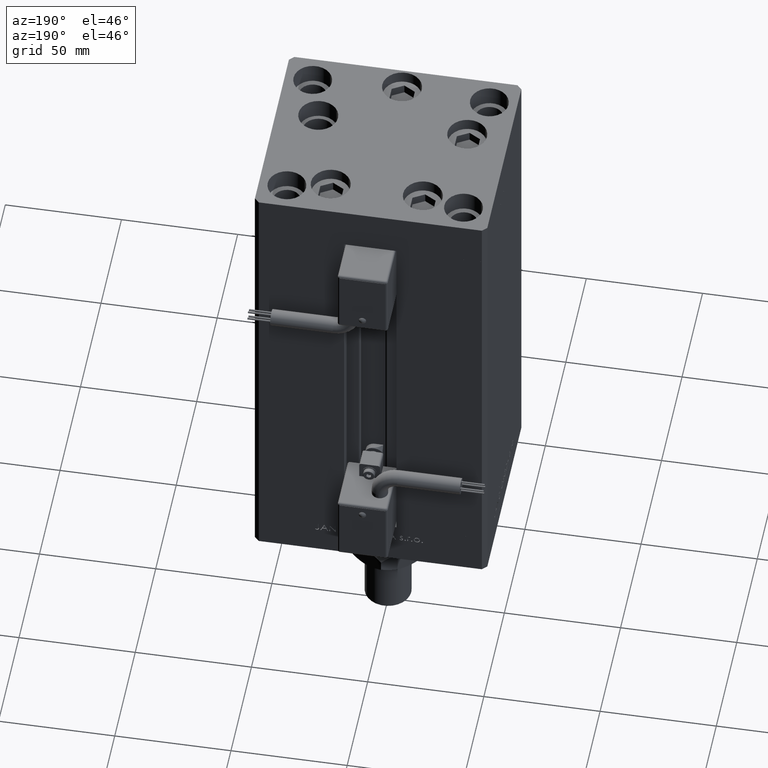
[diagram: clean part render]
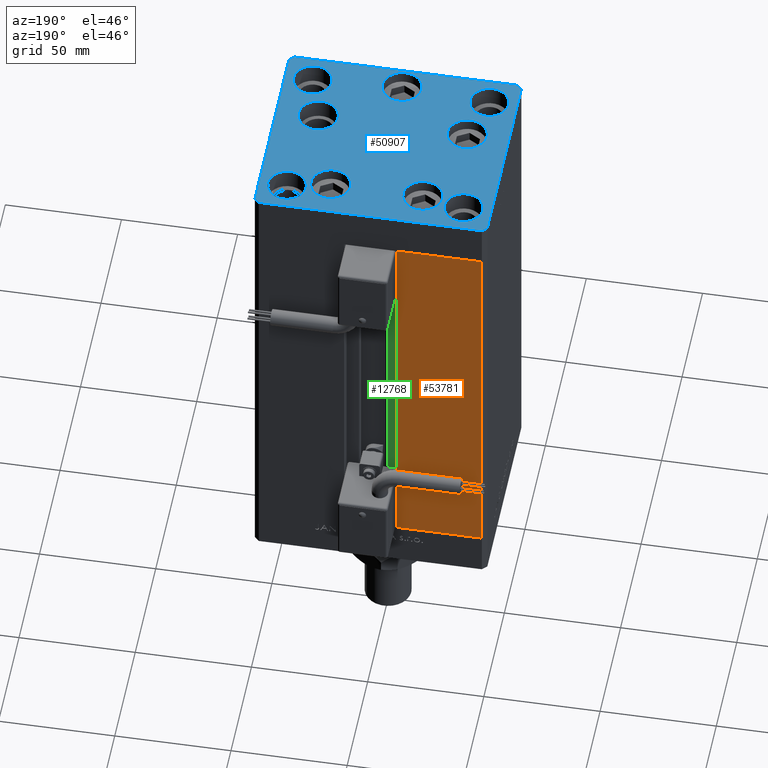
[diagram: same view with three faces highlighted in distinct colors, each labeled with its STEP entity id]
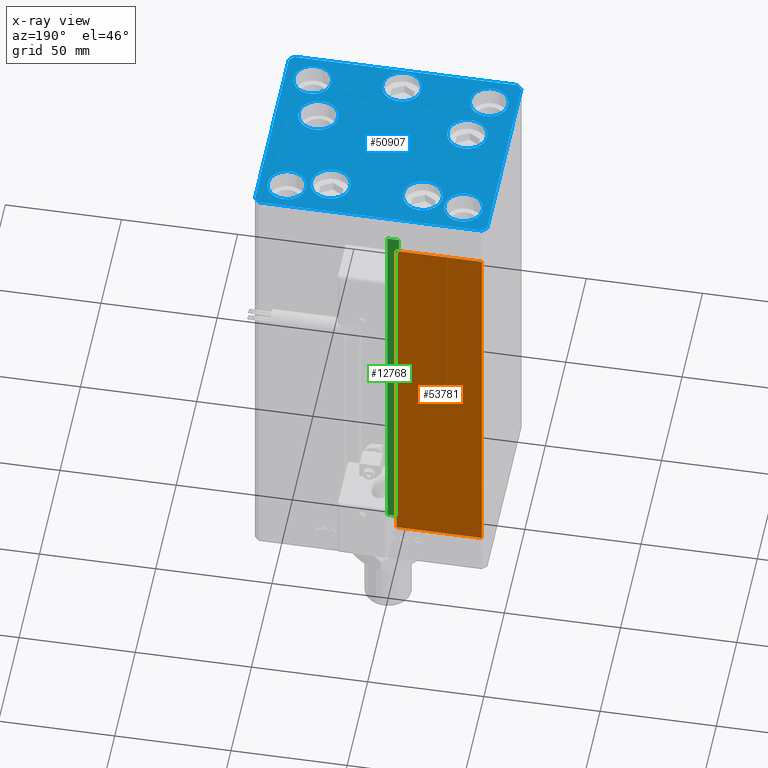
[diagram: x-ray of the same camera — body ghosted, the three highlighted faces saturated]
A machine part, auxiliary view with three faces highlighted in distinct colors.
The next image is the same camera in x-ray (body ghosted, the three faces saturated) — at least one of them is partly hidden behind the body in this view.
Their STEP definitions:

[orange] entity #53781 — the highlighted planar face has unit normal (0, -1, 0).
#399 = CARTESIAN_POINT ( 'NONE',  ( -11.24999999999999822, 43.50000000000000000, 168.5000000000000000 ) ) ;
#669 = FACE_OUTER_BOUND ( 'NONE', #31235, .T. ) ;
#2579 = ORIENTED_EDGE ( 'NONE', *, *, #37189, .F. ) ;
#4181 = CARTESIAN_POINT ( 'NONE',  ( -11.24999999999999822, 43.50000000000000000, 0.000000000000000000 ) ) ;
#4208 = PLANE ( 'NONE',  #30331 ) ;
#5945 = VECTOR ( 'NONE', #7749, 1000.000000000000000 ) ;
#7749 = DIRECTION ( 'NONE',  ( 1.000000000000000000, 0.000000000000000000, 0.000000000000000000 ) ) ;
#9269 = LINE ( 'NONE', #25883, #5945 ) ;
#10710 = ORIENTED_EDGE ( 'NONE', *, *, #52772, .T. ) ;
#11886 = LINE ( 'NONE', #48895, #30719 ) ;
#12135 = LINE ( 'NONE', #53222, #16653 ) ;
#15773 = VERTEX_POINT ( 'NONE', #28951 ) ;
#16092 = ORIENTED_EDGE ( 'NONE', *, *, #33111, .F. ) ;
#16468 = DIRECTION ( 'NONE',  ( 0.000000000000000000, -0.000000000000000000, -1.000000000000000000 ) ) ;
#16653 = VECTOR ( 'NONE', #41530, 1000.000000000000000 ) ;
#16895 = VERTEX_POINT ( 'NONE', #34278 ) ;
#19193 = CARTESIAN_POINT ( 'NONE',  ( -11.24999999999999822, 43.50000000000000000, 168.5000000000000000 ) ) ;
#20692 = VECTOR ( 'NONE', #43896, 1000.000000000000000 ) ;
#21263 = ORIENTED_EDGE ( 'NONE', *, *, #51669, .T. ) ;
#25883 = CARTESIAN_POINT ( 'NONE',  ( -11.24999999999999822, 43.50000000000000000, 168.5000000000000000 ) ) ;
#28951 = CARTESIAN_POINT ( 'NONE',  ( -48.00000000000000711, 43.50000000000000000, 0.000000000000000000 ) ) ;
#30331 = AXIS2_PLACEMENT_3D ( 'NONE', #399, #45301, #16468 ) ;
#30719 = VECTOR ( 'NONE', #40202, 1000.000000000000000 ) ;
#30871 = CARTESIAN_POINT ( 'NONE',  ( -11.24999999999999822, 43.50000000000000000, 0.000000000000000000 ) ) ;
#31235 = EDGE_LOOP ( 'NONE', ( #10710, #2579, #21263, #16092 ) ) ;
#32450 = VERTEX_POINT ( 'NONE', #4181 ) ;
#33111 = EDGE_CURVE ( 'NONE', #16895, #15773, #12135, .T. ) ;
#34278 = CARTESIAN_POINT ( 'NONE',  ( -48.00000000000000711, 43.50000000000000000, 168.5000000000000000 ) ) ;
#35188 = VERTEX_POINT ( 'NONE', #19193 ) ;
#37189 = EDGE_CURVE ( 'NONE', #32450, #35188, #11886, .T. ) ;
#40202 = DIRECTION ( 'NONE',  ( -0.000000000000000000, -0.000000000000000000, 1.000000000000000000 ) ) ;
#41530 = DIRECTION ( 'NONE',  ( -0.000000000000000000, -0.000000000000000000, -1.000000000000000000 ) ) ;
#43896 = DIRECTION ( 'NONE',  ( -1.000000000000000000, 0.000000000000000000, 0.000000000000000000 ) ) ;
#45301 = DIRECTION ( 'NONE',  ( 0.000000000000000000, -1.000000000000000000, 0.000000000000000000 ) ) ;
#48895 = CARTESIAN_POINT ( 'NONE',  ( -11.24999999999999822, 43.50000000000000000, 0.000000000000000000 ) ) ;
#51669 = EDGE_CURVE ( 'NONE', #32450, #15773, #52057, .T. ) ;
#52057 = LINE ( 'NONE', #30871, #20692 ) ;
#52772 = EDGE_CURVE ( 'NONE', #16895, #35188, #9269, .T. ) ;
#53222 = CARTESIAN_POINT ( 'NONE',  ( -48.00000000000000711, 43.50000000000000000, 168.5000000000000000 ) ) ;
#53781 = ADVANCED_FACE ( 'NONE', ( #669 ), #4208, .F. ) ;

[blue] entity #50907 — the highlighted planar face has unit normal (0, 0, 1).
#64 = CARTESIAN_POINT ( 'NONE',  ( 38.00000000000000000, 31.49999999999999289, 0.000000000000000000 ) ) ;
#111 = AXIS2_PLACEMENT_3D ( 'NONE', #31378, #36262, #39795 ) ;
#157 = DIRECTION ( 'NONE',  ( 0.000000000000000000, -0.000000000000000000, -1.000000000000000000 ) ) ;
#397 = FACE_BOUND ( 'NONE', #886, .T. ) ;
#616 = DIRECTION ( 'NONE',  ( 1.000000000000000000, 0.000000000000000000, 0.000000000000000000 ) ) ;
#866 = DIRECTION ( 'NONE',  ( 1.000000000000000000, 0.000000000000000000, 0.000000000000000000 ) ) ;
#886 = EDGE_LOOP ( 'NONE', ( #50153, #30832 ) ) ;
#1219 = DIRECTION ( 'NONE',  ( 0.000000000000000000, 0.000000000000000000, 1.000000000000000000 ) ) ;
#1228 = DIRECTION ( 'NONE',  ( 0.000000000000000000, -0.000000000000000000, -1.000000000000000000 ) ) ;
#1532 = VECTOR ( 'NONE', #48036, 1000.000000000000000 ) ;
#1662 = CARTESIAN_POINT ( 'NONE',  ( -32.05550741379015278, -11.33333333333333925, 0.000000000000000000 ) ) ;
#1759 = CARTESIAN_POINT ( 'NONE',  ( 4.163799117101000559E-15, -34.00000000000000000, 0.000000000000000000 ) ) ;
#1765 = EDGE_LOOP ( 'NONE', ( #11348, #39257 ) ) ;
#2276 = EDGE_CURVE ( 'NONE', #40452, #29568, #36360, .T. ) ;
#2340 = AXIS2_PLACEMENT_3D ( 'NONE', #1759, #1228, #30896 ) ;
#3248 = CARTESIAN_POINT ( 'NONE',  ( 40.55550741379014568, -11.33333333333332860, 0.000000000000000000 ) ) ;
#3452 = CARTESIAN_POINT ( 'NONE',  ( 32.05550741379015278, -11.33333333333333037, 0.000000000000000000 ) ) ;
#3500 = CIRCLE ( 'NONE', #6087, 8.500000000000000000 ) ;
#3700 = LINE ( 'NONE', #7788, #16177 ) ;
#3799 = DIRECTION ( 'NONE',  ( 1.000000000000000000, 0.000000000000000000, 0.000000000000000000 ) ) ;
#3823 = DIRECTION ( 'NONE',  ( -1.003213576468515193E-15, 1.000000000000000000, 0.000000000000000000 ) ) ;
#3942 = EDGE_CURVE ( 'NONE', #29568, #40452, #16558, .T. ) ;
#4080 = CIRCLE ( 'NONE', #2340, 8.500000000000000000 ) ;
#4314 = EDGE_LOOP ( 'NONE', ( #37838, #47973 ) ) ;
#4386 = CARTESIAN_POINT ( 'NONE',  ( -29.74999999999999289, -31.50000000000000000, 0.000000000000000000 ) ) ;
#4464 = VECTOR ( 'NONE', #3823, 1000.000000000000000 ) ;
#4683 = VERTEX_POINT ( 'NONE', #4386 ) ;
#4985 = CARTESIAN_POINT ( 'NONE',  ( -40.55550741379015278, -11.33333333333333925, 0.000000000000000000 ) ) ;
#5002 = DIRECTION ( 'NONE',  ( -0.000000000000000000, 0.000000000000000000, 1.000000000000000000 ) ) ;
#5220 = DIRECTION ( 'NONE',  ( 0.000000000000000000, 0.000000000000000000, 1.000000000000000000 ) ) ;
#5340 = DIRECTION ( 'NONE',  ( 0.000000000000000000, 0.000000000000000000, 1.000000000000000000 ) ) ;
#5912 = AXIS2_PLACEMENT_3D ( 'NONE', #20138, #31379, #10659 ) ;
#5943 = AXIS2_PLACEMENT_3D ( 'NONE', #38507, #1219, #46919 ) ;
#6087 = AXIS2_PLACEMENT_3D ( 'NONE', #52144, #14875, #31497 ) ;
#6932 = VERTEX_POINT ( 'NONE', #24172 ) ;
#7051 = CARTESIAN_POINT ( 'NONE',  ( -48.00000000000000711, 43.49999999999996447, 0.000000000000000000 ) ) ;
#7767 = EDGE_CURVE ( 'NONE', #48570, #4683, #48009, .T. ) ;
#7788 = CARTESIAN_POINT ( 'NONE',  ( -50.00000000000000000, -41.50000000000000000, 0.000000000000000000 ) ) ;
#7813 = DIRECTION ( 'NONE',  ( -0.7071067811865463515, -0.7071067811865487940, 0.000000000000000000 ) ) ;
#7816 = CARTESIAN_POINT ( 'NONE',  ( 47.99999999999999289, -43.50000000000001421, 0.000000000000000000 ) ) ;
#8150 = VERTEX_POINT ( 'NONE', #28005 ) ;
#8318 = VERTEX_POINT ( 'NONE', #38842 ) ;
#8325 = EDGE_CURVE ( 'NONE', #8150, #44002, #23041, .T. ) ;
#8499 = EDGE_CURVE ( 'NONE', #9262, #28586, #48918, .T. ) ;
#8550 = FACE_BOUND ( 'NONE', #42257, .T. ) ;
#8718 = ORIENTED_EDGE ( 'NONE', *, *, #49652, .T. ) ;
#8795 = ORIENTED_EDGE ( 'NONE', *, *, #40325, .T. ) ;
#9094 = AXIS2_PLACEMENT_3D ( 'NONE', #15592, #18859, #36279 ) ;
#9259 = DIRECTION ( 'NONE',  ( 0.000000000000000000, -0.000000000000000000, -1.000000000000000000 ) ) ;
#9262 = VERTEX_POINT ( 'NONE', #18969 ) ;
#9671 = EDGE_LOOP ( 'NONE', ( #50072, #27113 ) ) ;
#9795 = AXIS2_PLACEMENT_3D ( 'NONE', #22331, #9259, #25869 ) ;
#10212 = CIRCLE ( 'NONE', #17180, 8.250000000000000000 ) ;
#10391 = ORIENTED_EDGE ( 'NONE', *, *, #18163, .T. ) ;
#10400 = ORIENTED_EDGE ( 'NONE', *, *, #50689, .F. ) ;
#10659 = DIRECTION ( 'NONE',  ( 1.000000000000000000, 0.000000000000000000, 0.000000000000000000 ) ) ;
#10813 = VERTEX_POINT ( 'NONE', #4985 ) ;
#10887 = DIRECTION ( 'NONE',  ( 1.000000000000000000, 0.000000000000000000, 0.000000000000000000 ) ) ;
#10961 = CARTESIAN_POINT ( 'NONE',  ( -23.55550741379015278, -11.33333333333333748, 0.000000000000000000 ) ) ;
#11033 = CARTESIAN_POINT ( 'NONE',  ( -50.00000000000000711, 41.49999999999995026, 0.000000000000000000 ) ) ;
#11348 = ORIENTED_EDGE ( 'NONE', *, *, #2276, .F. ) ;
#11587 = EDGE_LOOP ( 'NONE', ( #39868, #8795 ) ) ;
#11737 = DIRECTION ( 'NONE',  ( -1.000000000000000000, -3.614007241618350743E-16, 0.000000000000000000 ) ) ;
#11869 = ORIENTED_EDGE ( 'NONE', *, *, #7767, .F. ) ;
#12254 = EDGE_CURVE ( 'NONE', #27132, #44807, #30879, .T. ) ;
#12363 = FACE_BOUND ( 'NONE', #4314, .T. ) ;
#12796 = CARTESIAN_POINT ( 'NONE',  ( -50.00000000000000711, 41.49999999999995026, 0.000000000000000000 ) ) ;
#13097 = DIRECTION ( 'NONE',  ( 0.000000000000000000, 0.000000000000000000, 1.000000000000000000 ) ) ;
#13324 = ORIENTED_EDGE ( 'NONE', *, *, #8325, .T. ) ;
#13456 = CARTESIAN_POINT ( 'NONE',  ( 4.163799117101000559E-15, -34.00000000000000000, 0.000000000000000000 ) ) ;
#13662 = ORIENTED_EDGE ( 'NONE', *, *, #40126, .F. ) ;
#14033 = DIRECTION ( 'NONE',  ( 1.000000000000000000, 0.000000000000000000, 0.000000000000000000 ) ) ;
#14109 = AXIS2_PLACEMENT_3D ( 'NONE', #39991, #26666, #52493 ) ;
#14299 = CIRCLE ( 'NONE', #9094, 8.499999999999992895 ) ;
#14875 = DIRECTION ( 'NONE',  ( 0.000000000000000000, -0.000000000000000000, -1.000000000000000000 ) ) ;
#14974 = CARTESIAN_POINT ( 'NONE',  ( 38.00000000000000000, -31.49999999999999289, 0.000000000000000000 ) ) ;
#15044 = AXIS2_PLACEMENT_3D ( 'NONE', #13456, #157, #41524 ) ;
#15273 = CARTESIAN_POINT ( 'NONE',  ( 50.00000000000000000, -41.49999999999999289, 0.000000000000000000 ) ) ;
#15387 = EDGE_CURVE ( 'NONE', #20159, #8150, #3700, .T. ) ;
#15592 = CARTESIAN_POINT ( 'NONE',  ( 32.05550741379015278, -11.33333333333333037, 0.000000000000000000 ) ) ;
#15717 = LINE ( 'NONE', #32339, #52753 ) ;
#16177 = VECTOR ( 'NONE', #53757, 1000.000000000000114 ) ;
#16558 = CIRCLE ( 'NONE', #25217, 8.250000000000000000 ) ;
#16688 = CIRCLE ( 'NONE', #47086, 8.499999999999992895 ) ;
#16723 = FACE_BOUND ( 'NONE', #9671, .T. ) ;
#16873 = CIRCLE ( 'NONE', #22979, 8.250000000000000000 ) ;
#16930 = EDGE_LOOP ( 'NONE', ( #51363, #13324, #50861, #20083, #43083, #38103, #8718, #10391 ) ) ;
#17180 = AXIS2_PLACEMENT_3D ( 'NONE', #50505, #5340, #14033 ) ;
#17538 = FACE_BOUND ( 'NONE', #1765, .T. ) ;
#17560 = VERTEX_POINT ( 'NONE', #31071 ) ;
#17752 = VERTEX_POINT ( 'NONE', #34286 ) ;
#17796 = PLANE ( 'NONE',  #39787 ) ;
#18114 = VECTOR ( 'NONE', #24427, 1000.000000000000000 ) ;
#18157 = CARTESIAN_POINT ( 'NONE',  ( -47.99999999999999289, -43.50000000000001421, 0.000000000000000000 ) ) ;
#18163 = EDGE_CURVE ( 'NONE', #33784, #20159, #52127, .T. ) ;
#18258 = DIRECTION ( 'NONE',  ( 0.000000000000000000, -0.000000000000000000, -1.000000000000000000 ) ) ;
#18383 = CARTESIAN_POINT ( 'NONE',  ( 38.00000000000000000, -31.49999999999999289, 0.000000000000000000 ) ) ;
#18503 = CIRCLE ( 'NONE', #9795, 8.500000000000000000 ) ;
#18859 = DIRECTION ( 'NONE',  ( 0.000000000000000000, -0.000000000000000000, -1.000000000000000000 ) ) ;
#18969 = CARTESIAN_POINT ( 'NONE',  ( 8.500000000000003553, -34.00000000000000000, 0.000000000000000000 ) ) ;
#19882 = CARTESIAN_POINT ( 'NONE',  ( -19.82068048781373903, 27.62499999999999645, 0.000000000000000000 ) ) ;
#19905 = LINE ( 'NONE', #15273, #4464 ) ;
#20008 = CARTESIAN_POINT ( 'NONE',  ( 50.00000000000000000, -41.49999999999999289, 0.000000000000000000 ) ) ;
#20083 = ORIENTED_EDGE ( 'NONE', *, *, #30232, .T. ) ;
#20138 = CARTESIAN_POINT ( 'NONE',  ( 38.00000000000000000, 31.49999999999999289, 0.000000000000000000 ) ) ;
#20141 = VERTEX_POINT ( 'NONE', #45546 ) ;
#20159 = VERTEX_POINT ( 'NONE', #34138 ) ;
#20486 = CARTESIAN_POINT ( 'NONE',  ( 46.25000000000000000, 31.49999999999999289, 0.000000000000000000 ) ) ;
#20502 = EDGE_CURVE ( 'NONE', #29226, #10813, #22349, .T. ) ;
#20853 = EDGE_CURVE ( 'NONE', #34918, #42187, #42356, .T. ) ;
#21828 = VECTOR ( 'NONE', #11737, 1000.000000000000000 ) ;
#22156 = CARTESIAN_POINT ( 'NONE',  ( 19.82068048781373193, 27.62500000000000000, 0.000000000000000000 ) ) ;
#22169 = AXIS2_PLACEMENT_3D ( 'NONE', #14974, #31602, #10887 ) ;
#22331 = CARTESIAN_POINT ( 'NONE',  ( -19.82068048781373903, 27.62499999999999645, 0.000000000000000000 ) ) ;
#22349 = CIRCLE ( 'NONE', #37119, 8.500000000000000000 ) ;
#22979 = AXIS2_PLACEMENT_3D ( 'NONE', #18383, #51562, #39884 ) ;
#23041 = LINE ( 'NONE', #18157, #32409 ) ;
#23654 = EDGE_CURVE ( 'NONE', #8318, #32849, #29420, .T. ) ;
#23953 = CARTESIAN_POINT ( 'NONE',  ( 47.99999999999999289, -43.50000000000001421, 0.000000000000000000 ) ) ;
#24172 = CARTESIAN_POINT ( 'NONE',  ( -11.32068048781373726, 27.62499999999999645, 0.000000000000000000 ) ) ;
#24427 = DIRECTION ( 'NONE',  ( 0.7071067811865463515, 0.7071067811865487940, 0.000000000000000000 ) ) ;
#25095 = CARTESIAN_POINT ( 'NONE',  ( -8.499999999999996447, -34.00000000000000000, 0.000000000000000000 ) ) ;
#25164 = FACE_BOUND ( 'NONE', #48202, .T. ) ;
#25217 = AXIS2_PLACEMENT_3D ( 'NONE', #64, #13097, #866 ) ;
#25869 = DIRECTION ( 'NONE',  ( 1.000000000000000000, 0.000000000000000000, 0.000000000000000000 ) ) ;
#26326 = AXIS2_PLACEMENT_3D ( 'NONE', #26448, #5220, #616 ) ;
#26448 = CARTESIAN_POINT ( 'NONE',  ( -37.99999999999999289, -31.50000000000000000, 0.000000000000000000 ) ) ;
#26666 = DIRECTION ( 'NONE',  ( 0.000000000000000000, 0.000000000000000000, 1.000000000000000000 ) ) ;
#26860 = DIRECTION ( 'NONE',  ( 1.000000000000000000, 0.000000000000000000, 0.000000000000000000 ) ) ;
#27113 = ORIENTED_EDGE ( 'NONE', *, *, #20853, .T. ) ;
#27132 = VERTEX_POINT ( 'NONE', #50535 ) ;
#27258 = EDGE_CURVE ( 'NONE', #10813, #29226, #3500, .T. ) ;
#27478 = VERTEX_POINT ( 'NONE', #44392 ) ;
#28005 = CARTESIAN_POINT ( 'NONE',  ( -47.99999999999999289, -43.50000000000001421, 0.000000000000000000 ) ) ;
#28044 = DIRECTION ( 'NONE',  ( 0.000000000000000000, -0.000000000000000000, -1.000000000000000000 ) ) ;
#28238 = DIRECTION ( 'NONE',  ( 1.000000000000000000, 0.000000000000000000, 0.000000000000000000 ) ) ;
#28586 = VERTEX_POINT ( 'NONE', #25095 ) ;
#29026 = LINE ( 'NONE', #37725, #43786 ) ;
#29226 = VERTEX_POINT ( 'NONE', #10961 ) ;
#29293 = DIRECTION ( 'NONE',  ( -0.7071067811865474617, 0.7071067811865474617, 0.000000000000000000 ) ) ;
#29420 = CIRCLE ( 'NONE', #5943, 8.250000000000000000 ) ;
#29568 = VERTEX_POINT ( 'NONE', #45696 ) ;
#30232 = EDGE_CURVE ( 'NONE', #37572, #17752, #19905, .T. ) ;
#30832 = ORIENTED_EDGE ( 'NONE', *, *, #35926, .F. ) ;
#30879 = CIRCLE ( 'NONE', #22169, 8.250000000000000000 ) ;
#30896 = DIRECTION ( 'NONE',  ( 1.000000000000000000, 0.000000000000000000, 0.000000000000000000 ) ) ;
#31037 = ORIENTED_EDGE ( 'NONE', *, *, #27258, .T. ) ;
#31071 = CARTESIAN_POINT ( 'NONE',  ( 47.99999999999990763, 43.50000000000000000, 0.000000000000000000 ) ) ;
#31378 = CARTESIAN_POINT ( 'NONE',  ( 19.82068048781373193, 27.62500000000000000, 0.000000000000000000 ) ) ;
#31379 = DIRECTION ( 'NONE',  ( 0.000000000000000000, 0.000000000000000000, 1.000000000000000000 ) ) ;
#31497 = DIRECTION ( 'NONE',  ( 1.000000000000000000, 0.000000000000000000, 0.000000000000000000 ) ) ;
#31602 = DIRECTION ( 'NONE',  ( 0.000000000000000000, 0.000000000000000000, 1.000000000000000000 ) ) ;
#32339 = CARTESIAN_POINT ( 'NONE',  ( -48.00000000000000711, 43.49999999999996447, 0.000000000000000000 ) ) ;
#32409 = VECTOR ( 'NONE', #26860, 1000.000000000000000 ) ;
#32676 = EDGE_CURVE ( 'NONE', #42187, #34918, #45276, .T. ) ;
#32803 = EDGE_CURVE ( 'NONE', #17560, #49364, #36798, .T. ) ;
#32849 = VERTEX_POINT ( 'NONE', #50614 ) ;
#33078 = VERTEX_POINT ( 'NONE', #3248 ) ;
#33254 = CIRCLE ( 'NONE', #14109, 8.250000000000000000 ) ;
#33341 = FACE_BOUND ( 'NONE', #51284, .T. ) ;
#33784 = VERTEX_POINT ( 'NONE', #12796 ) ;
#34138 = CARTESIAN_POINT ( 'NONE',  ( -50.00000000000000000, -41.50000000000000000, 0.000000000000000000 ) ) ;
#34148 = DIRECTION ( 'NONE',  ( 1.000000000000000000, 0.000000000000000000, 0.000000000000000000 ) ) ;
#34286 = CARTESIAN_POINT ( 'NONE',  ( 49.99999999999992184, 41.49999999999998579, 0.000000000000000000 ) ) ;
#34687 = DIRECTION ( 'NONE',  ( 1.000000000000000000, 0.000000000000000000, 0.000000000000000000 ) ) ;
#34918 = VERTEX_POINT ( 'NONE', #35863 ) ;
#35034 = EDGE_CURVE ( 'NONE', #20141, #33078, #16688, .T. ) ;
#35183 = ORIENTED_EDGE ( 'NONE', *, *, #8499, .T. ) ;
#35863 = CARTESIAN_POINT ( 'NONE',  ( 28.32068048781373193, 27.62500000000000000, 0.000000000000000000 ) ) ;
#35926 = EDGE_CURVE ( 'NONE', #32849, #8318, #33254, .T. ) ;
#36183 = ORIENTED_EDGE ( 'NONE', *, *, #12254, .F. ) ;
#36262 = DIRECTION ( 'NONE',  ( 0.000000000000000000, -0.000000000000000000, -1.000000000000000000 ) ) ;
#36279 = DIRECTION ( 'NONE',  ( 1.000000000000000000, 0.000000000000000000, 0.000000000000000000 ) ) ;
#36360 = CIRCLE ( 'NONE', #5912, 8.250000000000000000 ) ;
#36579 = ORIENTED_EDGE ( 'NONE', *, *, #20502, .T. ) ;
#36603 = EDGE_CURVE ( 'NONE', #27478, #6932, #18503, .T. ) ;
#36798 = LINE ( 'NONE', #53107, #21828 ) ;
#37119 = AXIS2_PLACEMENT_3D ( 'NONE', #1662, #18258, #47092 ) ;
#37572 = VERTEX_POINT ( 'NONE', #20008 ) ;
#37725 = CARTESIAN_POINT ( 'NONE',  ( 49.99999999999992184, 41.49999999999998579, 0.000000000000000000 ) ) ;
#37813 = EDGE_LOOP ( 'NONE', ( #31037, #36579 ) ) ;
#37838 = ORIENTED_EDGE ( 'NONE', *, *, #36603, .T. ) ;
#37949 = DIRECTION ( 'NONE',  ( 0.000000000000000000, -0.000000000000000000, -1.000000000000000000 ) ) ;
#38103 = ORIENTED_EDGE ( 'NONE', *, *, #32803, .T. ) ;
#38507 = CARTESIAN_POINT ( 'NONE',  ( -38.00000000000000000, 31.50000000000000000, 0.000000000000000000 ) ) ;
#38842 = CARTESIAN_POINT ( 'NONE',  ( -29.75000000000000000, 31.50000000000000000, 0.000000000000000000 ) ) ;
#39257 = ORIENTED_EDGE ( 'NONE', *, *, #3942, .F. ) ;
#39666 = ORIENTED_EDGE ( 'NONE', *, *, #48820, .T. ) ;
#39787 = AXIS2_PLACEMENT_3D ( 'NONE', #51248, #5002, #34148 ) ;
#39795 = DIRECTION ( 'NONE',  ( 1.000000000000000000, 0.000000000000000000, 0.000000000000000000 ) ) ;
#39868 = ORIENTED_EDGE ( 'NONE', *, *, #35034, .T. ) ;
#39884 = DIRECTION ( 'NONE',  ( 1.000000000000000000, 0.000000000000000000, 0.000000000000000000 ) ) ;
#39991 = CARTESIAN_POINT ( 'NONE',  ( -38.00000000000000000, 31.50000000000000000, 0.000000000000000000 ) ) ;
#40126 = EDGE_CURVE ( 'NONE', #44807, #27132, #16873, .T. ) ;
#40325 = EDGE_CURVE ( 'NONE', #33078, #20141, #14299, .T. ) ;
#40452 = VERTEX_POINT ( 'NONE', #20486 ) ;
#40642 = AXIS2_PLACEMENT_3D ( 'NONE', #22156, #37949, #34687 ) ;
#40752 = LINE ( 'NONE', #7816, #18114 ) ;
#41015 = DIRECTION ( 'NONE',  ( 0.000000000000000000, -0.000000000000000000, -1.000000000000000000 ) ) ;
#41524 = DIRECTION ( 'NONE',  ( 1.000000000000000000, 0.000000000000000000, 0.000000000000000000 ) ) ;
#42071 = CARTESIAN_POINT ( 'NONE',  ( 11.32068048781373015, 27.62500000000000000, 0.000000000000000000 ) ) ;
#42133 = EDGE_CURVE ( 'NONE', #17752, #17560, #29026, .T. ) ;
#42187 = VERTEX_POINT ( 'NONE', #42071 ) ;
#42257 = EDGE_LOOP ( 'NONE', ( #13662, #36183 ) ) ;
#42356 = CIRCLE ( 'NONE', #40642, 8.500000000000000000 ) ;
#43083 = ORIENTED_EDGE ( 'NONE', *, *, #42133, .T. ) ;
#43786 = VECTOR ( 'NONE', #29293, 1000.000000000000114 ) ;
#44002 = VERTEX_POINT ( 'NONE', #23953 ) ;
#44392 = CARTESIAN_POINT ( 'NONE',  ( -28.32068048781373903, 27.62499999999999645, 0.000000000000000000 ) ) ;
#44807 = VERTEX_POINT ( 'NONE', #48116 ) ;
#45276 = CIRCLE ( 'NONE', #111, 8.500000000000000000 ) ;
#45546 = CARTESIAN_POINT ( 'NONE',  ( 23.55550741379015633, -11.33333333333333037, 0.000000000000000000 ) ) ;
#45696 = CARTESIAN_POINT ( 'NONE',  ( 29.74999999999999645, 31.49999999999999289, 0.000000000000000000 ) ) ;
#46092 = FACE_OUTER_BOUND ( 'NONE', #16930, .T. ) ;
#46843 = CIRCLE ( 'NONE', #49457, 8.500000000000000000 ) ;
#46919 = DIRECTION ( 'NONE',  ( 1.000000000000000000, 0.000000000000000000, 0.000000000000000000 ) ) ;
#47086 = AXIS2_PLACEMENT_3D ( 'NONE', #3452, #41015, #28238 ) ;
#47092 = DIRECTION ( 'NONE',  ( 1.000000000000000000, 0.000000000000000000, 0.000000000000000000 ) ) ;
#47973 = ORIENTED_EDGE ( 'NONE', *, *, #53043, .T. ) ;
#48009 = CIRCLE ( 'NONE', #26326, 8.250000000000000000 ) ;
#48036 = DIRECTION ( 'NONE',  ( 8.360113137237628665E-17, -1.000000000000000000, 0.000000000000000000 ) ) ;
#48116 = CARTESIAN_POINT ( 'NONE',  ( 46.25000000000000000, -31.49999999999999289, 0.000000000000000000 ) ) ;
#48202 = EDGE_LOOP ( 'NONE', ( #10400, #11869 ) ) ;
#48570 = VERTEX_POINT ( 'NONE', #50866 ) ;
#48820 = EDGE_CURVE ( 'NONE', #28586, #9262, #4080, .T. ) ;
#48918 = CIRCLE ( 'NONE', #15044, 8.500000000000000000 ) ;
#49364 = VERTEX_POINT ( 'NONE', #7051 ) ;
#49457 = AXIS2_PLACEMENT_3D ( 'NONE', #19882, #28044, #3799 ) ;
#49652 = EDGE_CURVE ( 'NONE', #49364, #33784, #15717, .T. ) ;
#49901 = FACE_BOUND ( 'NONE', #37813, .T. ) ;
#50072 = ORIENTED_EDGE ( 'NONE', *, *, #32676, .T. ) ;
#50153 = ORIENTED_EDGE ( 'NONE', *, *, #23654, .F. ) ;
#50505 = CARTESIAN_POINT ( 'NONE',  ( -37.99999999999999289, -31.50000000000000000, 0.000000000000000000 ) ) ;
#50535 = CARTESIAN_POINT ( 'NONE',  ( 29.74999999999999645, -31.49999999999999289, 0.000000000000000000 ) ) ;
#50614 = CARTESIAN_POINT ( 'NONE',  ( -46.25000000000000000, 31.50000000000000000, 0.000000000000000000 ) ) ;
#50689 = EDGE_CURVE ( 'NONE', #4683, #48570, #10212, .T. ) ;
#50861 = ORIENTED_EDGE ( 'NONE', *, *, #52424, .T. ) ;
#50866 = CARTESIAN_POINT ( 'NONE',  ( -46.24999999999999289, -31.50000000000000000, 0.000000000000000000 ) ) ;
#50907 = ADVANCED_FACE ( 'NONE', ( #12363, #16723, #53732, #33341, #49901, #8550, #25164, #397, #17538, #46092 ), #17796, .T. ) ;
#51248 = CARTESIAN_POINT ( 'NONE',  ( 0.000000000000000000, 0.000000000000000000, 0.000000000000000000 ) ) ;
#51284 = EDGE_LOOP ( 'NONE', ( #39666, #35183 ) ) ;
#51363 = ORIENTED_EDGE ( 'NONE', *, *, #15387, .T. ) ;
#51562 = DIRECTION ( 'NONE',  ( 0.000000000000000000, 0.000000000000000000, 1.000000000000000000 ) ) ;
#52127 = LINE ( 'NONE', #11033, #1532 ) ;
#52144 = CARTESIAN_POINT ( 'NONE',  ( -32.05550741379015278, -11.33333333333333925, 0.000000000000000000 ) ) ;
#52424 = EDGE_CURVE ( 'NONE', #44002, #37572, #40752, .T. ) ;
#52493 = DIRECTION ( 'NONE',  ( 1.000000000000000000, 0.000000000000000000, 0.000000000000000000 ) ) ;
#52753 = VECTOR ( 'NONE', #7813, 1000.000000000000000 ) ;
#53043 = EDGE_CURVE ( 'NONE', #6932, #27478, #46843, .T. ) ;
#53107 = CARTESIAN_POINT ( 'NONE',  ( 47.99999999999990763, 43.50000000000000000, 0.000000000000000000 ) ) ;
#53732 = FACE_BOUND ( 'NONE', #11587, .T. ) ;
#53757 = DIRECTION ( 'NONE',  ( 0.7071067811865474617, -0.7071067811865474617, 0.000000000000000000 ) ) ;

[green] entity #12768 — the highlighted planar face has unit normal (0, -1, 0).
#450 = AXIS2_PLACEMENT_3D ( 'NONE', #47492, #30935, #26572 ) ;
#5607 = VECTOR ( 'NONE', #24086, 1000.000000000000000 ) ;
#6678 = FACE_OUTER_BOUND ( 'NONE', #48053, .T. ) ;
#6715 = CARTESIAN_POINT ( 'NONE',  ( 0.000000000000000000, 36.99999999999999289, 168.5000000000000000 ) ) ;
#7580 = CARTESIAN_POINT ( 'NONE',  ( -6.183333333333997928, 36.99999999999999289, 0.000000000000000000 ) ) ;
#9192 = VERTEX_POINT ( 'NONE', #39923 ) ;
#11863 = LINE ( 'NONE', #36916, #45312 ) ;
#12106 = EDGE_CURVE ( 'NONE', #53553, #44139, #40146, .T. ) ;
#12369 = CARTESIAN_POINT ( 'NONE',  ( -6.183333333333997928, 36.99999999999999289, 0.000000000000000000 ) ) ;
#12768 = ADVANCED_FACE ( 'NONE', ( #6678 ), #14304, .F. ) ;
#14304 = PLANE ( 'NONE',  #450 ) ;
#21125 = ORIENTED_EDGE ( 'NONE', *, *, #33151, .F. ) ;
#21282 = ORIENTED_EDGE ( 'NONE', *, *, #32136, .F. ) ;
#21543 = ORIENTED_EDGE ( 'NONE', *, *, #41075, .F. ) ;
#23861 = LINE ( 'NONE', #6715, #27892 ) ;
#23878 = VERTEX_POINT ( 'NONE', #7580 ) ;
#24086 = DIRECTION ( 'NONE',  ( -0.000000000000000000, -0.000000000000000000, 1.000000000000000000 ) ) ;
#26572 = DIRECTION ( 'NONE',  ( 0.000000000000000000, 0.000000000000000000, -1.000000000000000000 ) ) ;
#27892 = VECTOR ( 'NONE', #52692, 1000.000000000000000 ) ;
#28178 = CARTESIAN_POINT ( 'NONE',  ( -11.24999999999999822, 36.99999999999999289, 0.000000000000000000 ) ) ;
#30935 = DIRECTION ( 'NONE',  ( 0.000000000000000000, -1.000000000000000000, -0.000000000000000000 ) ) ;
#32136 = EDGE_CURVE ( 'NONE', #9192, #44139, #23861, .T. ) ;
#33151 = EDGE_CURVE ( 'NONE', #23878, #9192, #11863, .T. ) ;
#34751 = CARTESIAN_POINT ( 'NONE',  ( -11.24999999999999822, 36.99999999999999289, 0.000000000000000000 ) ) ;
#35228 = VECTOR ( 'NONE', #37152, 1000.000000000000000 ) ;
#36916 = CARTESIAN_POINT ( 'NONE',  ( -6.183333333333997928, 36.99999999999999289, 0.000000000000000000 ) ) ;
#37152 = DIRECTION ( 'NONE',  ( 1.000000000000000000, -0.000000000000000000, -0.000000000000000000 ) ) ;
#37180 = DIRECTION ( 'NONE',  ( -0.000000000000000000, -0.000000000000000000, 1.000000000000000000 ) ) ;
#37391 = ORIENTED_EDGE ( 'NONE', *, *, #12106, .T. ) ;
#39923 = CARTESIAN_POINT ( 'NONE',  ( -6.183333333333997928, 36.99999999999999289, 168.5000000000000000 ) ) ;
#39926 = CARTESIAN_POINT ( 'NONE',  ( -11.24999999999999822, 36.99999999999999289, 168.5000000000000000 ) ) ;
#40146 = LINE ( 'NONE', #28178, #5607 ) ;
#41075 = EDGE_CURVE ( 'NONE', #53553, #23878, #45302, .T. ) ;
#44139 = VERTEX_POINT ( 'NONE', #39926 ) ;
#45302 = LINE ( 'NONE', #12369, #35228 ) ;
#45312 = VECTOR ( 'NONE', #37180, 1000.000000000000000 ) ;
#47492 = CARTESIAN_POINT ( 'NONE',  ( -6.183333333333997928, 36.99999999999999289, 0.000000000000000000 ) ) ;
#48053 = EDGE_LOOP ( 'NONE', ( #21125, #21543, #37391, #21282 ) ) ;
#52692 = DIRECTION ( 'NONE',  ( -1.000000000000000000, 0.000000000000000000, 0.000000000000000000 ) ) ;
#53553 = VERTEX_POINT ( 'NONE', #34751 ) ;